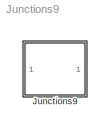
MODEL Junctions9
KIND model
CONFIG AbsTol = auto
CONFIG FixedStep = auto
CONFIG MaxStep = auto
CONFIG MinStep = auto
CONFIG RelTol = 1e-3
CONFIG Solver = FixedStepDiscrete
CONFIG SolverMode = Auto
CONFIG StartTime = 0.0
CONFIG StopTime = 10.0
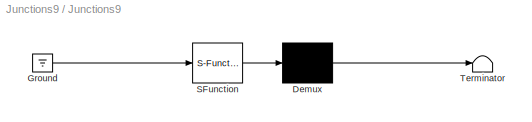
BLOCK [SubSystem] Junctions9
  MaskDescription = Stateflow diagram
  MaskDisplay = plot(sf('Private','sfblk','xIcon'),sf('Private','sfblk','yIcon'));text(0.5,0,sf('Private', 'sfblk', 'tIcon'),'HorizontalAl','Center','VerticalAl','Bottom');
  MaskIconFrame = off
  MaskIconOpaque = on
  MaskIconRotate = none
  MaskIconUnits = autoscale
  MaskSelfModifiable = on
  MaskType = Stateflow
  Ports = []
  TreatAsAtomicUnit = off
BLOCK [Demux] Junctions9/ Demux 
  Outputs = 1
  Ports = [1, 1]
BLOCK [Ground] Junctions9/ Ground 
BLOCK [S-Function] Junctions9/ SFunction 
  FunctionName = sf_sfun
  PortCounts = [1 1]
  Ports = [1, 1]
  Tag = Stateflow S-Function Junctions9 1
BLOCK [Terminator] Junctions9/ Terminator 
LINE Junctions9/ Demux :1 -> Junctions9/ Terminator :1
LINE Junctions9/ Ground :1 -> Junctions9/ SFunction :1
LINE Junctions9/ SFunction :1 -> Junctions9/ Demux :1
CHART Junctions9 states=3 transitions=5
  STATE_LABEL 'A'
  STATE_LABEL 'C'
  STATE_LABEL 'B'
